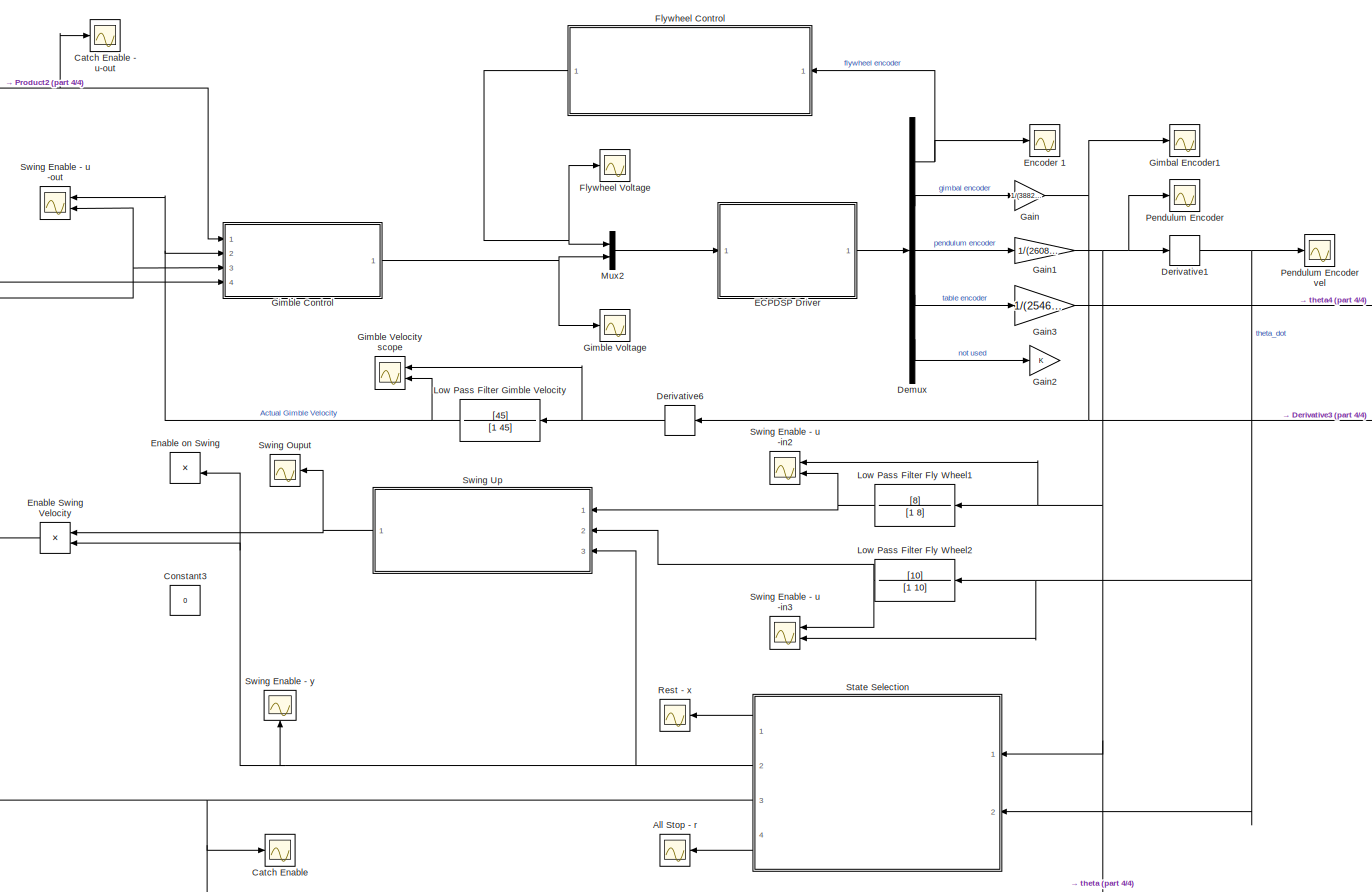
[diagram: root canvas - part 1/4, central region]
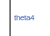
[diagram: root canvas - part 2/4, middle right region]
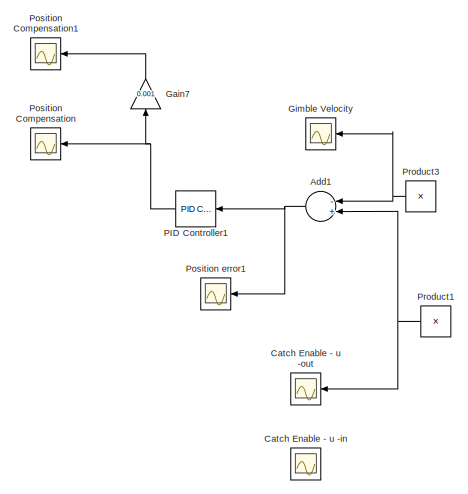
[diagram: root canvas - part 3/4, bottom left region]
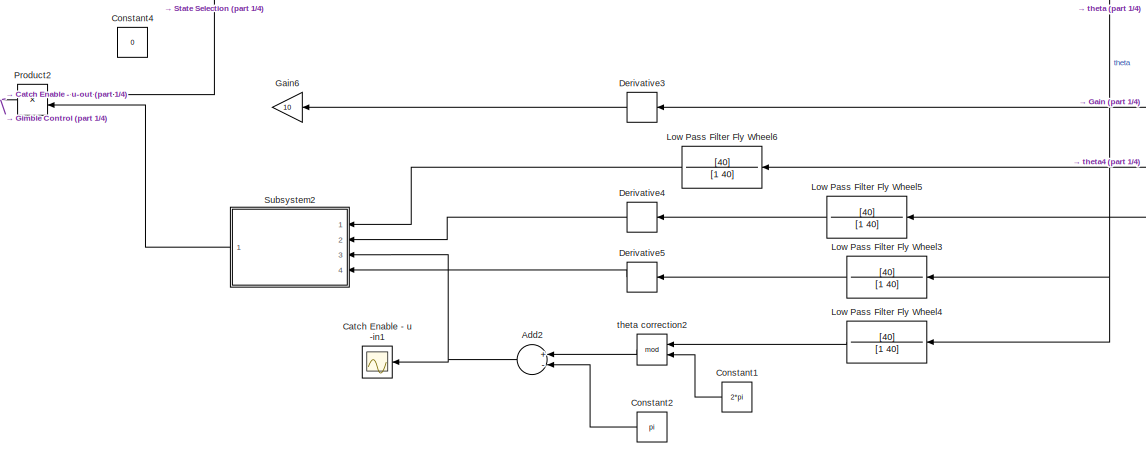
[diagram: root canvas - part 4/4, bottom center region]
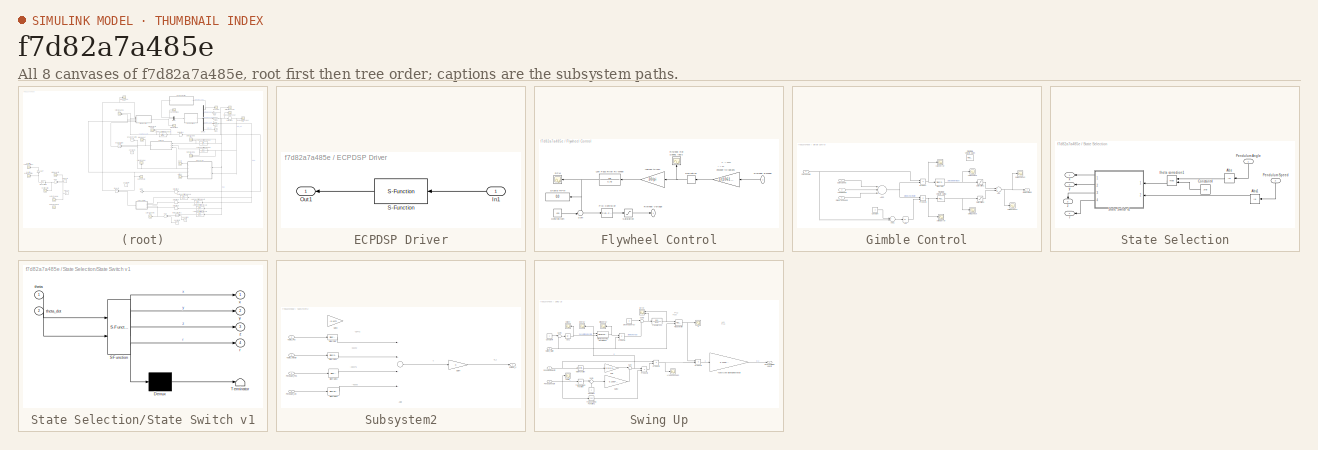
[diagram: thumbnail index - all 8 canvases of the model, root first then tree order]
MODEL slx_f7d82a7a485e
KIND model
BLOCK [Sum] Add1
  Commented = on
  InputSameDT = off
  Inputs = -+
  OutDataTypeStr = Inherit: Inherit via internal rule
  Ports = [2, 1]
  SaturateOnIntegerOverflow = off
BLOCK [Sum] Add2
  InputSameDT = off
  Inputs = +-
  OutDataTypeStr = Inherit: Inherit via internal rule
  Ports = [2, 1]
  SaturateOnIntegerOverflow = off
BLOCK [Scope] All Stop - r
  Floating = off
  NumInputPorts = 1
  Ports = [1]
  SaveName = ScopeData33
  ShowLegends = off
  YMax = 10
  YMin = -10
BLOCK [Scope] Catch Enable
  Floating = off
  NumInputPorts = 1
  Ports = [1]
  SaveName = ScopeData12
  ShowLegends = off
  YMax = 10
  YMin = -10
BLOCK [Scope] Catch Enable - u -in
  Commented = on
  Floating = off
  NumInputPorts = 1
  Ports = [1]
  SaveName = ScopeData2
  ShowLegends = off
  YMax = 10
  YMin = -10
BLOCK [Scope] Catch Enable - u -in1
  Floating = off
  NumInputPorts = 1
  Ports = [1]
  SaveName = ScopeData26
  ShowLegends = off
  YMax = 10
  YMin = -10
BLOCK [Scope] Catch Enable - u -out
  Commented = on
  Floating = off
  NumInputPorts = 1
  Ports = [1]
  SaveName = ScopeData8
  ShowLegends = off
  YMax = 10
  YMin = -10
BLOCK [Scope] Catch Enable - u-out
  Floating = off
  NumInputPorts = 1
  Ports = [1]
  SaveName = ScopeData20
  ShowLegends = off
  YMax = 10
  YMin = -10
BLOCK [Constant] Constant1
  Value = 2*pi
BLOCK [Constant] Constant2
  Value = pi
BLOCK [Constant] Constant3
  Value = 0
BLOCK [Constant] Constant4
  Value = 0
BLOCK [Demux] Demux
  Outputs = 5
  Ports = [1, 5]
BLOCK [Derivative] Derivative1
BLOCK [Derivative] Derivative3
  Commented = on
BLOCK [Derivative] Derivative4
BLOCK [Derivative] Derivative5
BLOCK [Derivative] Derivative6
BLOCK [SubSystem] ECPDSP Driver
  FunctionWithSeparateData = off
  MaskHideContents = off
  MinAlgLoopOccurrences = off
  Opaque = off
  Ports = [1, 1]
  PropExecContextOutsideSubsystem = off
  RTWSystemCode = Auto
  RequestExecContextInheritance = off
BLOCK [Inport] ECPDSP Driver/In1
  IconDisplay = Port number
BLOCK [Outport] ECPDSP Driver/Out1
  IconDisplay = Port number
BLOCK [S-Function] ECPDSP Driver/S-Function
  EnableBusSupport = off
  FunctionName = ECPDSPDriver
  Parameters = BaseAddr,STime,TimeOutPer,HWAccess
  Ports = [1, 1]
BLOCK [Product] Enable Swing Velocity
  InputSameDT = off
  OutDataTypeStr = Inherit: Inherit via internal rule
  Ports = [2, 1]
  RndMeth = Floor
  SaturateOnIntegerOverflow = off
BLOCK [Product] Enable on Swing
  Commented = on
  InputSameDT = off
  OutDataTypeStr = Inherit: Inherit via internal rule
  Ports = [2, 1]
  RndMeth = Floor
  SaturateOnIntegerOverflow = off
BLOCK [Scope] Encoder 1
  DataFormat = StructureWithTime
  Floating = off
  LimitDataPoints = off
  NumInputPorts = 1
  Ports = [1]
  SampleTime = 0
  SaveName = ScopeData3
  ShowLegends = off
  YMax = 8.5e+06
  YMin = 1.5e+06
BLOCK [SubSystem] Flywheel Control
  FunctionWithSeparateData = off
  MaskHideContents = off
  MinAlgLoopOccurrences = off
  Opaque = off
  Ports = [1, 1]
  PropExecContextOutsideSubsystem = off
  RTWSystemCode = Auto
  RequestExecContextInheritance = off
BLOCK [Derivative] Flywheel Control/Derivative
BLOCK [Constant] Flywheel Control/Desired rpm
  Value = 400
BLOCK [Display] Flywheel Control/Display RPM
  Decimation = 1
  Lockdown = off
  Ports = [1]
BLOCK [Inport] Flywheel Control/Flywheel Encoder
  IconDisplay = Port number
BLOCK [Scope] Flywheel Control/Flywheel Rot Speed, rad//s
  DataFormat = StructureWithTime
  Floating = off
  NumInputPorts = 1
  Ports = [1]
  SampleTime = 0
  SaveName = ScopeData4
  ShowLegends = off
BLOCK [Outport] Flywheel Control/Flywheel Voltage
  IconDisplay = Port number
BLOCK [TransferFcn] Flywheel Control/Low Pass Filter Fly Wheel
  Denominator = [1 5]
  Numerator = [5]
BLOCK [Reference] Flywheel Control/PID Controller  REF=simulink/Continuous/PID Controller
  AntiWindupMode = none
  Controller = PID
  D = 0
  DOutDataTypeStr = Inherit: Inherit via internal rule
  DOutMax = []
  DOutMin = []
  DParamDataTypeStr = Inherit: Inherit via internal rule
  DParamMax = []
  DParamMin = []
  ExternalReset = none
  FilterContinuousStateAttributes = ''
  FilterMethod = Forward Euler
  FilterOutDataTypeStr = Inherit: Inherit via internal rule
  FilterOutMax = []
  FilterOutMin = []
  FilterRTWStateStorageClass = Auto
  FilterStateMustResolveToSignalObject = off
  Form = Parallel
  I = 20
  IOutDataTypeStr = Inherit: Inherit via internal rule
  IOutMax = []
  IOutMin = []
  IParamDataTypeStr = Inherit: Inherit via internal rule
  IParamMax = []
  IParamMin = []
  IgnoreLimit = off
  InitialConditionForFilter = 0
  InitialConditionForIntegrator = 0
  InitialConditionSource = internal
  IntegratorContinuousStateAttributes = ''
  IntegratorMethod = Forward Euler
  IntegratorOutDataTypeStr = Inherit: Inherit via internal rule
  IntegratorOutMax = []
  IntegratorOutMin = []
  IntegratorRTWStateStorageClass = Auto
  IntegratorStateMustResolveToSignalObject = off
  Kb = 1
  KbOutDataTypeStr = Inherit: Inherit via internal rule
  KbOutMax = []
  KbOutMin = []
  KbParamDataTypeStr = Inherit: Inherit via internal rule
  KbParamMax = []
  KbParamMin = []
  Kt = 1
  KtOutDataTypeStr = Inherit: Inherit via internal rule
  KtOutMax = []
  KtOutMin = []
  KtParamDataTypeStr = Inherit: Inherit via internal rule
  KtParamMax = []
  KtParamMin = []
  LimitOutput = off
  LinearizeAsGain = on
  LockScale = off
  LowerSaturationLimit = -inf
  N = 100
  NOutDataTypeStr = Inherit: Inherit via internal rule
  NOutMax = []
  NOutMin = []
  NParamDataTypeStr = Inherit: Inherit via internal rule
  NParamMax = []
  NParamMin = []
  P = 4600
  POutDataTypeStr = Inherit: Inherit via internal rule
  POutMax = []
  POutMin = []
  PParamDataTypeStr = Inherit: Inherit via internal rule
  PParamMax = []
  PParamMin = []
  Ports = [1, 1]
  RndMeth = Floor
  SampleTime = 1
  SaturateOnIntegerOverflow = off
  SaturationOutDataTypeStr = Inherit: Same as input
  SaturationOutMax = []
  SaturationOutMin = []
  SourceBlock = simulink/Continuous/PID Controller
  SourceType = PID 1dof
  SumAccumDataTypeStr = Inherit: Inherit via internal rule
  SumDAccumDataTypeStr = Inherit: Inherit via internal rule
  SumDOutDataTypeStr = Inherit: Inherit via internal rule
  SumDOutMax = []
  SumDOutMin = []
  SumI1AccumDataTypeStr = Inherit: Inherit via internal rule
  SumI1OutDataTypeStr = Inherit: Inherit via internal rule
  SumI1OutMax = []
  SumI1OutMin = []
  SumI2AccumDataTypeStr = Inherit: Inherit via internal rule
  SumI2OutDataTypeStr = Inherit: Inherit via internal rule
  SumI2OutMax = []
  SumI2OutMin = []
  SumI3AccumDataTypeStr = Inherit: Inherit via internal rule
  SumI3OutDataTypeStr = Inherit: Inherit via internal rule
  SumI3OutMax = []
  SumI3OutMin = []
  SumOutDataTypeStr = Inherit: Inherit via internal rule
  SumOutMax = []
  SumOutMin = []
  TimeDomain = Continuous-time
  TrackingMode = off
  UpperSaturationLimit = inf
  ZeroCross = on
BLOCK [Scope] Flywheel Control/RPM
  DataFormat = StructureWithTime
  Floating = off
  LimitDataPoints = off
  NumInputPorts = 1
  Ports = [1]
  SampleTime = 0
  ShowLegends = off
  YMax = 403.9
  YMin = 401.6
BLOCK [Saturate] Flywheel Control/Saturation
  InputPortMap = u0
  LowerLimit = -32000
  Ports = [1, 1]
  UpperLimit = 32000
BLOCK [Sum] Flywheel Control/Sum
  IconShape = round
  InputSameDT = off
  Inputs = -+|
  OutDataTypeStr = Inherit: Inherit via internal rule
  Ports = [2, 1]
  SaturateOnIntegerOverflow = off
BLOCK [Gain] Flywheel Control/encoder to radians
  Gain = 1/(1061*32)
  OutDataTypeStr = Inherit: Inherit via internal rule
  ParamDataTypeStr = Inherit: Inherit via internal rule
  SaturateOnIntegerOverflow = off
BLOCK [Gain] Flywheel Control/rad//sec to rpm
  Gain = 30/pi
  OutDataTypeStr = Inherit: Inherit via internal rule
  ParamDataTypeStr = Inherit: Inherit via internal rule
  SaturateOnIntegerOverflow = off
BLOCK [Scope] Flywheel Voltage
  DataFormat = StructureWithTime
  Floating = off
  LimitDataPoints = off
  NumInputPorts = 1
  Ports = [1]
  SampleTime = 0
  SaveName = ScopeData6
  ShowLegends = off
  YMax = 33600
  YMin = 30400
BLOCK [Gain] Gain
  Gain = 1/(3882*32)
  OutDataTypeStr = Inherit: Inherit via internal rule
  ParamDataTypeStr = Inherit: Inherit via internal rule
  SaturateOnIntegerOverflow = off
BLOCK [Gain] Gain1
  Gain = 1/(2608*32)
  OutDataTypeStr = Inherit: Inherit via internal rule
  ParamDataTypeStr = Inherit: Inherit via internal rule
  SaturateOnIntegerOverflow = off
BLOCK [Gain] Gain2
  OutDataTypeStr = Inherit: Inherit via internal rule
  ParamDataTypeStr = Inherit: Inherit via internal rule
  SaturateOnIntegerOverflow = off
BLOCK [Gain] Gain3
  Gain = 1/(2546*32)
  OutDataTypeStr = Inherit: Inherit via internal rule
  ParamDataTypeStr = Inherit: Inherit via internal rule
  SaturateOnIntegerOverflow = off
BLOCK [Gain] Gain6
  Commented = on
  Gain = 10
  OutDataTypeStr = Inherit: Inherit via internal rule
  ParamDataTypeStr = Inherit: Inherit via internal rule
  SaturateOnIntegerOverflow = off
BLOCK [Gain] Gain7
  Commented = on
  Gain = 0.001
  OutDataTypeStr = Inherit: Inherit via internal rule
  ParamDataTypeStr = Inherit: Inherit via internal rule
  SaturateOnIntegerOverflow = off
BLOCK [Scope] Gimbal Encoder1
  DataFormat = StructureWithTime
  Floating = off
  NumInputPorts = 1
  Ports = [1]
  SampleTime = 0
  SaveName = ScopeData9
  ShowLegends = off
  YMax = 3.25
  YMin = -0.25
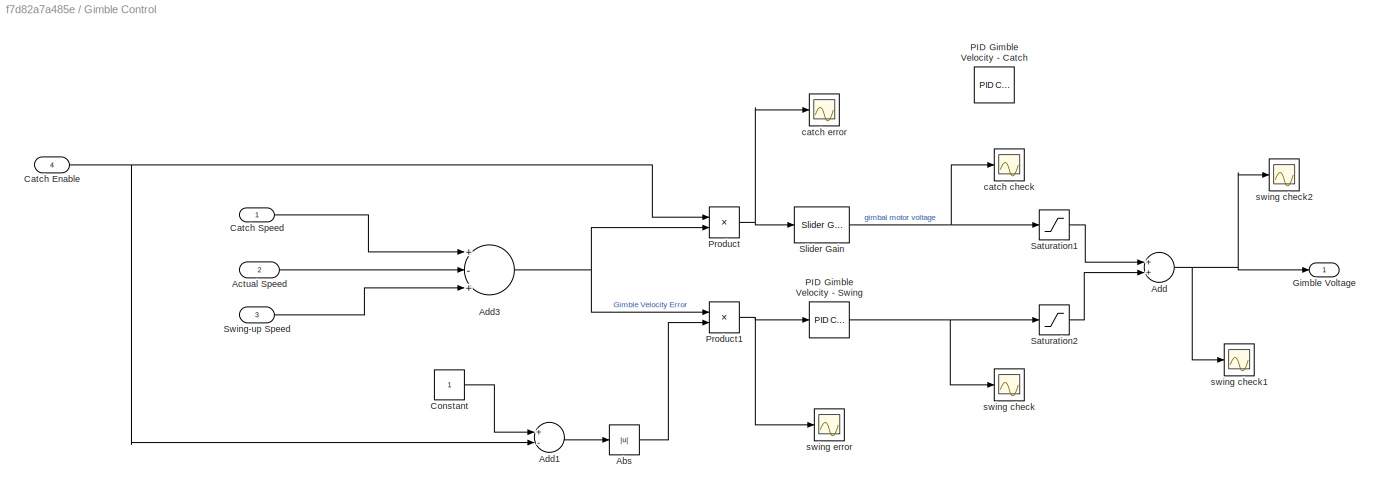
BLOCK [SubSystem] Gimble Control
  FunctionWithSeparateData = off
  MaskHideContents = off
  MinAlgLoopOccurrences = off
  Opaque = off
  Ports = [4, 1]
  PropExecContextOutsideSubsystem = off
  RTWSystemCode = Auto
  RequestExecContextInheritance = off
BLOCK [Abs] Gimble Control/Abs
  SaturateOnIntegerOverflow = off
BLOCK [Inport] Gimble Control/Actual Speed
  IconDisplay = Port number
  Port = 2
BLOCK [Sum] Gimble Control/Add
  InputSameDT = off
  OutDataTypeStr = Inherit: Inherit via internal rule
  Ports = [2, 1]
  SaturateOnIntegerOverflow = off
BLOCK [Sum] Gimble Control/Add1
  InputSameDT = off
  Inputs = +-
  OutDataTypeStr = Inherit: Inherit via internal rule
  Ports = [2, 1]
  SaturateOnIntegerOverflow = off
BLOCK [Sum] Gimble Control/Add3
  InputSameDT = off
  Inputs = +-+
  OutDataTypeStr = Inherit: Inherit via internal rule
  Ports = [3, 1]
  SaturateOnIntegerOverflow = off
BLOCK [Inport] Gimble Control/Catch Enable
  IconDisplay = Port number
  Port = 4
BLOCK [Inport] Gimble Control/Catch Speed
  IconDisplay = Port number
BLOCK [Constant] Gimble Control/Constant
BLOCK [Outport] Gimble Control/Gimble Voltage
  IconDisplay = Port number
BLOCK [Reference] Gimble Control/PID Gimble Velocity - Catch  REF=simulink/Continuous/PID Controller
  AntiWindupMode = none
  Commented = on
  Controller = PI
  D = 0
  DOutDataTypeStr = Inherit: Inherit via internal rule
  DOutMax = []
  DOutMin = []
  DParamDataTypeStr = Inherit: Inherit via internal rule
  DParamMax = []
  DParamMin = []
  ExternalReset = none
  FilterContinuousStateAttributes = ''
  FilterMethod = Forward Euler
  FilterOutDataTypeStr = Inherit: Inherit via internal rule
  FilterOutMax = []
  FilterOutMin = []
  FilterRTWStateStorageClass = Auto
  FilterStateMustResolveToSignalObject = off
  Form = Parallel
  I = 0
  IOutDataTypeStr = Inherit: Inherit via internal rule
  IOutMax = []
  IOutMin = []
  IParamDataTypeStr = Inherit: Inherit via internal rule
  IParamMax = []
  IParamMin = []
  IgnoreLimit = off
  InitialConditionForFilter = 0
  InitialConditionForIntegrator = 0
  InitialConditionSource = internal
  IntegratorContinuousStateAttributes = ''
  IntegratorMethod = Forward Euler
  IntegratorOutDataTypeStr = Inherit: Inherit via internal rule
  IntegratorOutMax = []
  IntegratorOutMin = []
  IntegratorRTWStateStorageClass = Auto
  IntegratorStateMustResolveToSignalObject = off
  Kb = 1
  KbOutDataTypeStr = Inherit: Inherit via internal rule
  KbOutMax = []
  KbOutMin = []
  KbParamDataTypeStr = Inherit: Inherit via internal rule
  KbParamMax = []
  KbParamMin = []
  Kt = 1
  KtOutDataTypeStr = Inherit: Inherit via internal rule
  KtOutMax = []
  KtOutMin = []
  KtParamDataTypeStr = Inherit: Inherit via internal rule
  KtParamMax = []
  KtParamMin = []
  LimitOutput = off
  LinearizeAsGain = on
  LockScale = off
  LowerSaturationLimit = -inf
  N = 100
  NOutDataTypeStr = Inherit: Inherit via internal rule
  NOutMax = []
  NOutMin = []
  NParamDataTypeStr = Inherit: Inherit via internal rule
  NParamMax = []
  NParamMin = []
  P = 1000
  POutDataTypeStr = Inherit: Inherit via internal rule
  POutMax = []
  POutMin = []
  PParamDataTypeStr = Inherit: Inherit via internal rule
  PParamMax = []
  PParamMin = []
  Ports = [1, 1]
  RndMeth = Floor
  SampleTime = 1
  SaturateOnIntegerOverflow = off
  SaturationOutDataTypeStr = Inherit: Same as input
  SaturationOutMax = []
  SaturationOutMin = []
  SourceBlock = simulink/Continuous/PID Controller
  SourceType = PID 1dof
  SumAccumDataTypeStr = Inherit: Inherit via internal rule
  SumDAccumDataTypeStr = Inherit: Inherit via internal rule
  SumDOutDataTypeStr = Inherit: Inherit via internal rule
  SumDOutMax = []
  SumDOutMin = []
  SumI1AccumDataTypeStr = Inherit: Inherit via internal rule
  SumI1OutDataTypeStr = Inherit: Inherit via internal rule
  SumI1OutMax = []
  SumI1OutMin = []
  SumI2AccumDataTypeStr = Inherit: Inherit via internal rule
  SumI2OutDataTypeStr = Inherit: Inherit via internal rule
  SumI2OutMax = []
  SumI2OutMin = []
  SumI3AccumDataTypeStr = Inherit: Inherit via internal rule
  SumI3OutDataTypeStr = Inherit: Inherit via internal rule
  SumI3OutMax = []
  SumI3OutMin = []
  SumOutDataTypeStr = Inherit: Inherit via internal rule
  SumOutMax = []
  SumOutMin = []
  TimeDomain = Continuous-time
  TrackingMode = off
  UpperSaturationLimit = inf
  ZeroCross = on
BLOCK [Reference] Gimble Control/PID Gimble Velocity - Swing  REF=simulink/Continuous/PID Controller
  AntiWindupMode = none
  Controller = PID
  D = 0
  DOutDataTypeStr = Inherit: Inherit via internal rule
  DOutMax = []
  DOutMin = []
  DParamDataTypeStr = Inherit: Inherit via internal rule
  DParamMax = []
  DParamMin = []
  ExternalReset = none
  FilterContinuousStateAttributes = ''
  FilterMethod = Forward Euler
  FilterOutDataTypeStr = Inherit: Inherit via internal rule
  FilterOutMax = []
  FilterOutMin = []
  FilterRTWStateStorageClass = Auto
  FilterStateMustResolveToSignalObject = off
  Form = Parallel
  I = 2500
  IOutDataTypeStr = Inherit: Inherit via internal rule
  IOutMax = []
  IOutMin = []
  IParamDataTypeStr = Inherit: Inherit via internal rule
  IParamMax = []
  IParamMin = []
  IgnoreLimit = off
  InitialConditionForFilter = 0
  InitialConditionForIntegrator = 0
  InitialConditionSource = internal
  IntegratorContinuousStateAttributes = ''
  IntegratorMethod = Forward Euler
  IntegratorOutDataTypeStr = Inherit: Inherit via internal rule
  IntegratorOutMax = []
  IntegratorOutMin = []
  IntegratorRTWStateStorageClass = Auto
  IntegratorStateMustResolveToSignalObject = off
  Kb = 1
  KbOutDataTypeStr = Inherit: Inherit via internal rule
  KbOutMax = []
  KbOutMin = []
  KbParamDataTypeStr = Inherit: Inherit via internal rule
  KbParamMax = []
  KbParamMin = []
  Kt = 1
  KtOutDataTypeStr = Inherit: Inherit via internal rule
  KtOutMax = []
  KtOutMin = []
  KtParamDataTypeStr = Inherit: Inherit via internal rule
  KtParamMax = []
  KtParamMin = []
  LimitOutput = off
  LinearizeAsGain = on
  LockScale = off
  LowerSaturationLimit = -inf
  N = 100
  NOutDataTypeStr = Inherit: Inherit via internal rule
  NOutMax = []
  NOutMin = []
  NParamDataTypeStr = Inherit: Inherit via internal rule
  NParamMax = []
  NParamMin = []
  P = 12000
  POutDataTypeStr = Inherit: Inherit via internal rule
  POutMax = []
  POutMin = []
  PParamDataTypeStr = Inherit: Inherit via internal rule
  PParamMax = []
  PParamMin = []
  Ports = [1, 1]
  RndMeth = Floor
  SampleTime = 1
  SaturateOnIntegerOverflow = off
  SaturationOutDataTypeStr = Inherit: Same as input
  SaturationOutMax = []
  SaturationOutMin = []
  SourceBlock = simulink/Continuous/PID Controller
  SourceType = PID 1dof
  SumAccumDataTypeStr = Inherit: Inherit via internal rule
  SumDAccumDataTypeStr = Inherit: Inherit via internal rule
  SumDOutDataTypeStr = Inherit: Inherit via internal rule
  SumDOutMax = []
  SumDOutMin = []
  SumI1AccumDataTypeStr = Inherit: Inherit via internal rule
  SumI1OutDataTypeStr = Inherit: Inherit via internal rule
  SumI1OutMax = []
  SumI1OutMin = []
  SumI2AccumDataTypeStr = Inherit: Inherit via internal rule
  SumI2OutDataTypeStr = Inherit: Inherit via internal rule
  SumI2OutMax = []
  SumI2OutMin = []
  SumI3AccumDataTypeStr = Inherit: Inherit via internal rule
  SumI3OutDataTypeStr = Inherit: Inherit via internal rule
  SumI3OutMax = []
  SumI3OutMin = []
  SumOutDataTypeStr = Inherit: Inherit via internal rule
  SumOutMax = []
  SumOutMin = []
  TimeDomain = Continuous-time
  TrackingMode = off
  UpperSaturationLimit = inf
  ZeroCross = on
BLOCK [Product] Gimble Control/Product
  InputSameDT = off
  OutDataTypeStr = Inherit: Inherit via internal rule
  Ports = [2, 1]
  RndMeth = Floor
  SaturateOnIntegerOverflow = off
BLOCK [Product] Gimble Control/Product1
  InputSameDT = off
  OutDataTypeStr = Inherit: Inherit via internal rule
  Ports = [2, 1]
  RndMeth = Floor
  SaturateOnIntegerOverflow = off
BLOCK [Saturate] Gimble Control/Saturation1
  InputPortMap = u0
  LowerLimit = -40000
  Ports = [1, 1]
  UpperLimit = 40000
BLOCK [Saturate] Gimble Control/Saturation2
  InputPortMap = u0
  LowerLimit = -9500
  Ports = [1, 1]
  UpperLimit = 9500
BLOCK [Reference] Gimble Control/Slider Gain  REF=simulink/Math
Operations/Slider
Gain
  Ports = [1, 1]
  SourceBlock = simulink/Math\nOperations/Slider\nGain
  SourceType = Slider Gain
  gain = 1626.958
  high = 2000
  low = 0
BLOCK [Inport] Gimble Control/Swing-up Speed
  IconDisplay = Port number
  Port = 3
BLOCK [Scope] Gimble Control/catch check
  DataFormat = StructureWithTime
  Floating = off
  NumInputPorts = 1
  Ports = [1]
  SampleTime = 0
  SaveName = ScopeData21
  ShowLegends = off
BLOCK [Scope] Gimble Control/catch error
  DataFormat = StructureWithTime
  Floating = off
  NumInputPorts = 1
  Ports = [1]
  SampleTime = 0
  SaveName = ScopeData24
  ShowLegends = off
BLOCK [Scope] Gimble Control/swing check
  DataFormat = StructureWithTime
  Floating = off
  NumInputPorts = 1
  Ports = [1]
  SampleTime = 0
  SaveName = ScopeData22
  ShowLegends = off
BLOCK [Scope] Gimble Control/swing check1
  DataFormat = StructureWithTime
  Floating = off
  NumInputPorts = 1
  Ports = [1]
  SampleTime = 0
  SaveName = ScopeData27
  ShowLegends = off
BLOCK [Scope] Gimble Control/swing check2
  DataFormat = StructureWithTime
  Floating = off
  NumInputPorts = 1
  Ports = [1]
  SampleTime = 0
  SaveName = ScopeData37
  ShowLegends = off
BLOCK [Scope] Gimble Control/swing error
  DataFormat = StructureWithTime
  Floating = off
  NumInputPorts = 1
  Ports = [1]
  SampleTime = 0
  SaveName = ScopeData25
  ShowLegends = off
BLOCK [Scope] Gimble Velocity
  Commented = on
  Floating = off
  NumInputPorts = 1
  Ports = [1]
  SaveName = ScopeData10
  ShowLegends = off
  YMax = 10
  YMin = -10
BLOCK [Scope] Gimble Velocity scope
  Floating = off
  LimitDataPoints = off
  NumInputPorts = 2
  Ports = [2]
  SaveName = ScopeData32
  ShowLegends = off
  YMax = 10~5
  YMin = -10~-5
BLOCK [Scope] Gimble Voltage
  Floating = off
  NumInputPorts = 1
  Ports = [1]
  SaveName = ScopeData23
  ShowLegends = off
  TimeRange = 4.21022074346109
  YMax = 13910.18606424908
  YMin = -27910.40741056809
BLOCK [TransferFcn] Low Pass Filter Fly Wheel1
  Denominator = [1 8]
  Numerator = [8]
BLOCK [TransferFcn] Low Pass Filter Fly Wheel2
  Denominator = [1 10]
  Numerator = [10]
BLOCK [TransferFcn] Low Pass Filter Fly Wheel3
  Denominator = [1 40]
  Numerator = [40]
BLOCK [TransferFcn] Low Pass Filter Fly Wheel4
  Denominator = [1 40]
  Numerator = [40]
BLOCK [TransferFcn] Low Pass Filter Fly Wheel5
  Denominator = [1 40]
  Numerator = [40]
BLOCK [TransferFcn] Low Pass Filter Fly Wheel6
  Denominator = [1 40]
  Numerator = [40]
BLOCK [TransferFcn] Low Pass Filter Gimble Velocity
  Denominator = [1 45]
  Numerator = [45]
BLOCK [Mux] Mux2
  DisplayOption = bar
  Inputs = 2
  Ports = [2, 1]
BLOCK [Reference] PID Controller1  REF=simulink/Continuous/PID Controller
  AntiWindupMode = none
  Commented = on
  Controller = PID
  D = 0
  DOutDataTypeStr = Inherit: Inherit via internal rule
  DOutMax = []
  DOutMin = []
  DParamDataTypeStr = Inherit: Inherit via internal rule
  DParamMax = []
  DParamMin = []
  ExternalReset = none
  FilterContinuousStateAttributes = ''
  FilterMethod = Forward Euler
  FilterOutDataTypeStr = Inherit: Inherit via internal rule
  FilterOutMax = []
  FilterOutMin = []
  FilterRTWStateStorageClass = Auto
  FilterStateMustResolveToSignalObject = off
  Form = Parallel
  I = 50
  IOutDataTypeStr = Inherit: Inherit via internal rule
  IOutMax = []
  IOutMin = []
  IParamDataTypeStr = Inherit: Inherit via internal rule
  IParamMax = []
  IParamMin = []
  IgnoreLimit = off
  InitialConditionForFilter = 0
  InitialConditionForIntegrator = 0
  InitialConditionSource = internal
  IntegratorContinuousStateAttributes = ''
  IntegratorMethod = Forward Euler
  IntegratorOutDataTypeStr = Inherit: Inherit via internal rule
  IntegratorOutMax = []
  IntegratorOutMin = []
  IntegratorRTWStateStorageClass = Auto
  IntegratorStateMustResolveToSignalObject = off
  Kb = 1
  KbOutDataTypeStr = Inherit: Inherit via internal rule
  KbOutMax = []
  KbOutMin = []
  KbParamDataTypeStr = Inherit: Inherit via internal rule
  KbParamMax = []
  KbParamMin = []
  Kt = 1
  KtOutDataTypeStr = Inherit: Inherit via internal rule
  KtOutMax = []
  KtOutMin = []
  KtParamDataTypeStr = Inherit: Inherit via internal rule
  KtParamMax = []
  KtParamMin = []
  LimitOutput = off
  LinearizeAsGain = on
  LockScale = off
  LowerSaturationLimit = -inf
  N = 100
  NOutDataTypeStr = Inherit: Inherit via internal rule
  NOutMax = []
  NOutMin = []
  NParamDataTypeStr = Inherit: Inherit via internal rule
  NParamMax = []
  NParamMin = []
  P = 200
  POutDataTypeStr = Inherit: Inherit via internal rule
  POutMax = []
  POutMin = []
  PParamDataTypeStr = Inherit: Inherit via internal rule
  PParamMax = []
  PParamMin = []
  Ports = [1, 1]
  RndMeth = Floor
  SampleTime = 1
  SaturateOnIntegerOverflow = off
  SaturationOutDataTypeStr = Inherit: Same as input
  SaturationOutMax = []
  SaturationOutMin = []
  SourceBlock = simulink/Continuous/PID Controller
  SourceType = PID 1dof
  SumAccumDataTypeStr = Inherit: Inherit via internal rule
  SumDAccumDataTypeStr = Inherit: Inherit via internal rule
  SumDOutDataTypeStr = Inherit: Inherit via internal rule
  SumDOutMax = []
  SumDOutMin = []
  SumI1AccumDataTypeStr = Inherit: Inherit via internal rule
  SumI1OutDataTypeStr = Inherit: Inherit via internal rule
  SumI1OutMax = []
  SumI1OutMin = []
  SumI2AccumDataTypeStr = Inherit: Inherit via internal rule
  SumI2OutDataTypeStr = Inherit: Inherit via internal rule
  SumI2OutMax = []
  SumI2OutMin = []
  SumI3AccumDataTypeStr = Inherit: Inherit via internal rule
  SumI3OutDataTypeStr = Inherit: Inherit via internal rule
  SumI3OutMax = []
  SumI3OutMin = []
  SumOutDataTypeStr = Inherit: Inherit via internal rule
  SumOutMax = []
  SumOutMin = []
  TimeDomain = Continuous-time
  TrackingMode = off
  UpperSaturationLimit = inf
  ZeroCross = on
BLOCK [Scope] Pendulum Encoder
  DataFormat = StructureWithTime
  Floating = off
  NumInputPorts = 1
  Ports = [1]
  SampleTime = 0
  SaveName = ScopeData5
  ShowLegends = off
  YMax = -3.1
  YMin = -3.175
BLOCK [Scope] Pendulum Encoder vel
  DataFormat = StructureWithTime
  Floating = off
  NumInputPorts = 1
  Ports = [1]
  SampleTime = 0
  SaveName = ScopeData19
  ShowLegends = off
  YMax = 3.25
  YMin = -0.25
BLOCK [Scope] Position Compensation
  Commented = on
  Floating = off
  NumInputPorts = 1
  Ports = [1]
  SaveName = ScopeData11
  ShowLegends = off
  YMax = 10
  YMin = -10
BLOCK [Scope] Position Compensation1
  Commented = on
  Floating = off
  NumInputPorts = 1
  Ports = [1]
  SaveName = ScopeData13
  ShowLegends = off
  YMax = 10
  YMin = -10
BLOCK [Scope] Position error1
  Commented = on
  Floating = off
  NumInputPorts = 1
  Ports = [1]
  SaveName = ScopeData14
  ShowLegends = off
  YMax = 10
  YMin = -10
BLOCK [Product] Product1
  Commented = on
  InputSameDT = off
  OutDataTypeStr = Inherit: Inherit via internal rule
  Ports = [2, 1]
  RndMeth = Floor
  SaturateOnIntegerOverflow = off
BLOCK [Product] Product2
  InputSameDT = off
  OutDataTypeStr = Inherit: Inherit via internal rule
  Ports = [2, 1]
  RndMeth = Floor
  SaturateOnIntegerOverflow = off
BLOCK [Product] Product3
  Commented = on
  InputSameDT = off
  OutDataTypeStr = Inherit: Inherit via internal rule
  Ports = [2, 1]
  RndMeth = Floor
  SaturateOnIntegerOverflow = off
BLOCK [Scope] Rest - x
  Floating = off
  NumInputPorts = 1
  Ports = [1]
  SaveName = ScopeData15
  ShowLegends = off
  YMax = 10
  YMin = -10
BLOCK [SubSystem] State Selection
  FunctionWithSeparateData = off
  MaskHideContents = off
  MinAlgLoopOccurrences = off
  Opaque = off
  Ports = [2, 4]
  PropExecContextOutsideSubsystem = off
  RTWSystemCode = Auto
  RequestExecContextInheritance = off
BLOCK [Abs] State Selection/Abs
  SaturateOnIntegerOverflow = off
BLOCK [Abs] State Selection/Abs1
  SaturateOnIntegerOverflow = off
BLOCK [Constant] State Selection/Constant4
  Value = 2*pi
BLOCK [Inport] State Selection/Pendulum Angle
  IconDisplay = Port number
BLOCK [Inport] State Selection/Pendulum Speed
  IconDisplay = Port number
  Port = 2
BLOCK [SubSystem] State Selection/State Switch v1
  ErrorFcn = Stateflow.Translate.translate
  FunctionWithSeparateData = off
  MaskHideContents = off
  MinAlgLoopOccurrences = off
  Opaque = off
  PermitHierarchicalResolution = ExplicitOnly
  Ports = [2, 4]
  PropExecContextOutsideSubsystem = off
  RTWSystemCode = Auto
  RequestExecContextInheritance = off
  SFBlockType = Chart
  TreatAsAtomicUnit = on
BLOCK [Demux] State Selection/State Switch v1/ Demux 
  Outputs = 1
  Ports = [1, 1]
BLOCK [S-Function] State Selection/State Switch v1/ SFunction 
  EnableBusSupport = on
  FunctionName = sf_sfun
  PortCounts = [2 5]
  Ports = [2, 5]
  Tag = Stateflow S-Function plant_block_swing_catch 3
BLOCK [Terminator] State Selection/State Switch v1/ Terminator 
BLOCK [Outport] State Selection/State Switch v1/r
  IconDisplay = Port number
  Port = 4
BLOCK [Inport] State Selection/State Switch v1/theta
  IconDisplay = Port number
BLOCK [Inport] State Selection/State Switch v1/theta_dot
  IconDisplay = Port number
  Port = 2
BLOCK [Outport] State Selection/State Switch v1/x
  IconDisplay = Port number
BLOCK [Outport] State Selection/State Switch v1/y
  IconDisplay = Port number
  Port = 2
BLOCK [Outport] State Selection/State Switch v1/z
  IconDisplay = Port number
  Port = 3
BLOCK [Outport] State Selection/r
  IconDisplay = Port number
  Port = 4
BLOCK [Math] State Selection/theta correction1
  Operator = mod
  Ports = [2, 1]
BLOCK [Outport] State Selection/x
  IconDisplay = Port number
BLOCK [Outport] State Selection/y
  IconDisplay = Port number
  Port = 2
BLOCK [Outport] State Selection/z
  IconDisplay = Port number
  Port = 3
BLOCK [SubSystem] Subsystem2
  FunctionWithSeparateData = off
  MaskHideContents = off
  MinAlgLoopOccurrences = off
  Opaque = off
  Ports = [4, 1]
  PropExecContextOutsideSubsystem = off
  RTWSystemCode = Auto
  RequestExecContextInheritance = off
BLOCK [Sum] Subsystem2/Add
  InputSameDT = off
  Inputs = ++++
  OutDataTypeStr = Inherit: Inherit via internal rule
  Ports = [4, 1]
  SaturateOnIntegerOverflow = off
BLOCK [Gain] Subsystem2/Gain2
  Gain = -0.4472
  OutDataTypeStr = Inherit: Inherit via internal rule
  ParamDataTypeStr = Inherit: Inherit via internal rule
  SaturateOnIntegerOverflow = off
BLOCK [Gain] Subsystem2/Gain4
  OutDataTypeStr = Inherit: Inherit via internal rule
  ParamDataTypeStr = Inherit: Inherit via internal rule
  SaturateOnIntegerOverflow = off
BLOCK [Inport] Subsystem2/Pendulum_Pos
  IconDisplay = Port number
  Port = 3
BLOCK [Inport] Subsystem2/Pendulum_Vel
  IconDisplay = Port number
  Port = 4
BLOCK [Reference] Subsystem2/Slider Gain  REF=simulink/Math
Operations/Slider
Gain
  Ports = [1, 1]
  SourceBlock = simulink/Math\nOperations/Slider\nGain
  SourceType = Slider Gain
  gain = -1.1972
  high = 5
  low = -20
BLOCK [Reference] Subsystem2/Slider Gain1  REF=simulink/Math
Operations/Slider
Gain
  Ports = [1, 1]
  SourceBlock = simulink/Math\nOperations/Slider\nGain
  SourceType = Slider Gain
  gain = -8.3202
  high = 1
  low = -30
BLOCK [Reference] Subsystem2/Slider Gain2  REF=simulink/Math
Operations/Slider
Gain
  Ports = [1, 1]
  SourceBlock = simulink/Math\nOperations/Slider\nGain
  SourceType = Slider Gain
  gain = -45.547
  high = 1
  low = -80
BLOCK [Reference] Subsystem2/Slider Gain3  REF=simulink/Math
Operations/Slider
Gain
  Ports = [1, 1]
  SourceBlock = simulink/Math\nOperations/Slider\nGain
  SourceType = Slider Gain
  gain = -8.2266
  high = 1
  low = -20
BLOCK [Inport] Subsystem2/Table_Pos
  IconDisplay = Port number
BLOCK [Inport] Subsystem2/Table_Velocity
  IconDisplay = Port number
  Port = 2
BLOCK [Outport] Subsystem2/omega_2
  IconDisplay = Port number
BLOCK [Scope] Swing Enable - u -in2
  Floating = off
  LimitDataPoints = off
  NumInputPorts = 2
  Ports = [2]
  SaveName = ScopeData30
  ShowLegends = off
  YMax = 10~5
  YMin = -10~-5
BLOCK [Scope] Swing Enable - u -in3
  Floating = off
  LimitDataPoints = off
  NumInputPorts = 2
  Ports = [2]
  SaveName = ScopeData31
  ShowLegends = off
  YMax = 10~5
  YMin = -10~-5
BLOCK [Scope] Swing Enable - u -out
  Floating = off
  NumInputPorts = 2
  Ports = [2]
  SaveName = ScopeData18
  ShowLegends = off
  YMax = 10~5
  YMin = -10~-5
BLOCK [Scope] Swing Enable - y
  Floating = off
  NumInputPorts = 1
  Ports = [1]
  SaveName = ScopeData16
  ShowLegends = off
  YMax = 10
  YMin = -10
BLOCK [Scope] Swing Ouput
  Floating = off
  NumInputPorts = 1
  Ports = [1]
  SaveName = ScopeData17
  ShowLegends = off
  YMax = 10
  YMin = -10
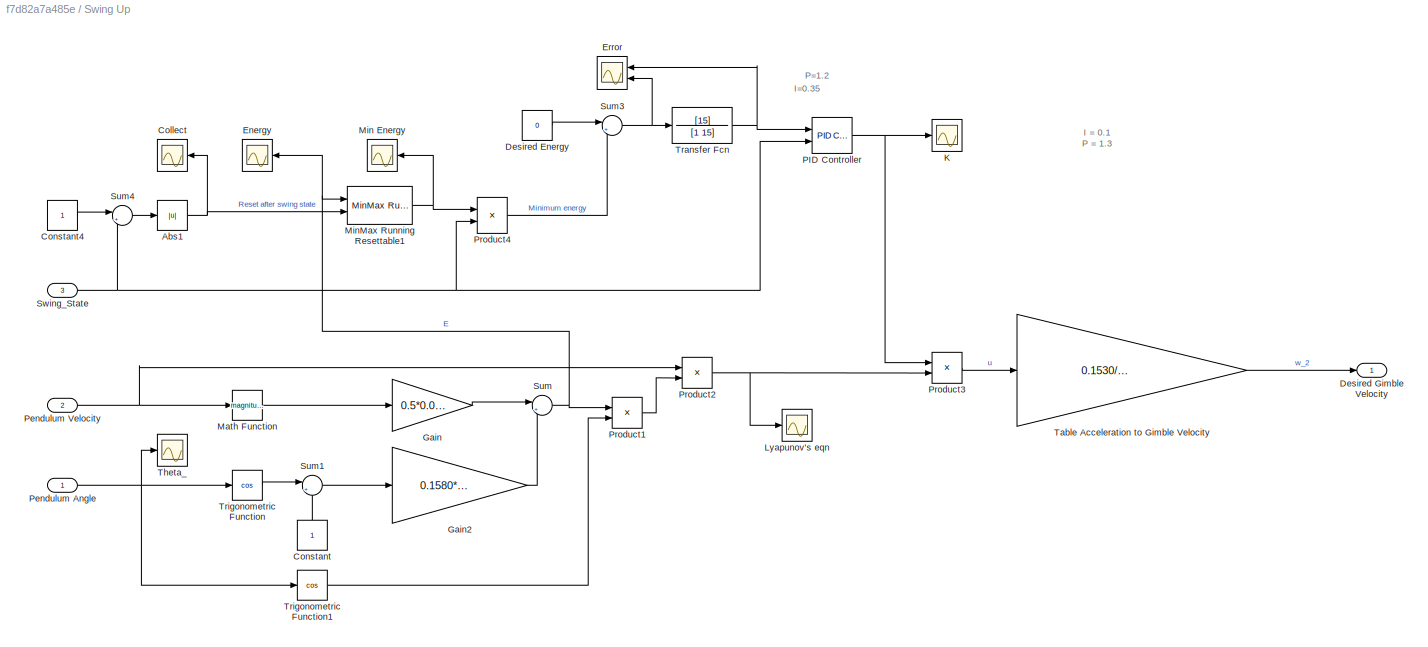
BLOCK [SubSystem] Swing Up
  FunctionWithSeparateData = off
  MaskHideContents = off
  MinAlgLoopOccurrences = off
  Opaque = off
  Ports = [3, 1]
  PropExecContextOutsideSubsystem = off
  RTWSystemCode = Auto
  RequestExecContextInheritance = off
BLOCK [Abs] Swing Up/Abs1
  SaturateOnIntegerOverflow = off
BLOCK [Scope] Swing Up/Collect
  DataFormat = StructureWithTime
  Floating = off
  NumInputPorts = 1
  Ports = [1]
  SaveName = ScopeData35
  ShowLegends = off
  YMax = 0.8575
  YMin = 0.82
BLOCK [Constant] Swing Up/Constant
BLOCK [Constant] Swing Up/Constant4
BLOCK [Constant] Swing Up/Desired Energy
  Value = 0
BLOCK [Outport] Swing Up/Desired Gimble Velocity
  IconDisplay = Port number
BLOCK [Scope] Swing Up/Energy
  DataFormat = StructureWithTime
  Floating = off
  NumInputPorts = 1
  Ports = [1]
  SaveName = ScopeData7
  ShowLegends = off
  YMax = 0.8575
  YMin = 0.82
BLOCK [Scope] Swing Up/Error
  DataFormat = StructureWithTime
  Floating = off
  NumInputPorts = 2
  Ports = [2]
  SaveName = ScopeData36
  ShowLegends = off
  YMax = 0.8575~5
  YMin = 0.82~-5
BLOCK [Gain] Swing Up/Gain
  Gain = 0.5*0.0131
  OutDataTypeStr = Inherit: Inherit via internal rule
  ParamDataTypeStr = Inherit: Inherit via internal rule
  SaturateOnIntegerOverflow = off
BLOCK [Gain] Swing Up/Gain2
  Gain = 0.1580*9.81*0.2698
  OutDataTypeStr = Inherit: Inherit via internal rule
  ParamDataTypeStr = Inherit: Inherit via internal rule
  SaturateOnIntegerOverflow = off
BLOCK [Scope] Swing Up/K
  DataFormat = StructureWithTime
  Floating = off
  LimitDataPoints = off
  NumInputPorts = 1
  Ports = [1]
  SaveName = ScopeData29
  ShowLegends = off
  YMax = -0.00209088
  YMin = -0.00209088
BLOCK [Scope] Swing Up/Lyapunov's eqn
  DataFormat = StructureWithTime
  Floating = off
  LimitDataPoints = off
  NumInputPorts = 1
  Ports = [1]
  SaveName = ScopeData1
  ShowLegends = off
  YMax = 10
  YMin = -10
BLOCK [Math] Swing Up/Math Function
  Operator = magnitude^2
  Ports = [1, 1]
BLOCK [Scope] Swing Up/Min Energy
  DataFormat = StructureWithTime
  Floating = off
  NumInputPorts = 1
  Ports = [1]
  SaveName = ScopeData34
  ShowLegends = off
  YMax = 0.8575
  YMin = 0.82
BLOCK [Reference] Swing Up/MinMax Running Resettable1  REF=simulink/Math
Operations/MinMax
Running
Resettable
  Function = min
  Ports = [2, 1]
  SourceBlock = simulink/Math\nOperations/MinMax\nRunning\nResettable
  SourceType = MinMax Running Resettable
  vinit = 0.85
BLOCK [Reference] Swing Up/PID Controller  REF=simulink/Continuous/PID Controller
  AntiWindupMode = none
  Controller = PID
  D = 0
  DOutDataTypeStr = Inherit: Inherit via internal rule
  DOutMax = []
  DOutMin = []
  DParamDataTypeStr = Inherit: Inherit via internal rule
  DParamMax = []
  DParamMin = []
  ExternalReset = falling
  FilterContinuousStateAttributes = ''
  FilterMethod = Forward Euler
  FilterOutDataTypeStr = Inherit: Inherit via internal rule
  FilterOutMax = []
  FilterOutMin = []
  FilterRTWStateStorageClass = Auto
  FilterStateMustResolveToSignalObject = off
  Form = Parallel
  I = 0.15
  IOutDataTypeStr = Inherit: Inherit via internal rule
  IOutMax = []
  IOutMin = []
  IParamDataTypeStr = Inherit: Inherit via internal rule
  IParamMax = []
  IParamMin = []
  IgnoreLimit = off
  InitialConditionForFilter = 0
  InitialConditionForIntegrator = 0
  InitialConditionSource = internal
  IntegratorContinuousStateAttributes = ''
  IntegratorMethod = Forward Euler
  IntegratorOutDataTypeStr = Inherit: Inherit via internal rule
  IntegratorOutMax = []
  IntegratorOutMin = []
  IntegratorRTWStateStorageClass = Auto
  IntegratorStateMustResolveToSignalObject = off
  Kb = 1
  KbOutDataTypeStr = Inherit: Inherit via internal rule
  KbOutMax = []
  KbOutMin = []
  KbParamDataTypeStr = Inherit: Inherit via internal rule
  KbParamMax = []
  KbParamMin = []
  Kt = 1
  KtOutDataTypeStr = Inherit: Inherit via internal rule
  KtOutMax = []
  KtOutMin = []
  KtParamDataTypeStr = Inherit: Inherit via internal rule
  KtParamMax = []
  KtParamMin = []
  LimitOutput = off
  LinearizeAsGain = on
  LockScale = off
  LowerSaturationLimit = -inf
  N = 100
  NOutDataTypeStr = Inherit: Inherit via internal rule
  NOutMax = []
  NOutMin = []
  NParamDataTypeStr = Inherit: Inherit via internal rule
  NParamMax = []
  NParamMin = []
  P = 0.5
  POutDataTypeStr = Inherit: Inherit via internal rule
  POutMax = []
  POutMin = []
  PParamDataTypeStr = Inherit: Inherit via internal rule
  PParamMax = []
  PParamMin = []
  Ports = [2, 1]
  RndMeth = Floor
  SampleTime = 1
  SaturateOnIntegerOverflow = off
  SaturationOutDataTypeStr = Inherit: Same as input
  SaturationOutMax = []
  SaturationOutMin = []
  SourceBlock = simulink/Continuous/PID Controller
  SourceType = PID 1dof
  SumAccumDataTypeStr = Inherit: Inherit via internal rule
  SumDAccumDataTypeStr = Inherit: Inherit via internal rule
  SumDOutDataTypeStr = Inherit: Inherit via internal rule
  SumDOutMax = []
  SumDOutMin = []
  SumI1AccumDataTypeStr = Inherit: Inherit via internal rule
  SumI1OutDataTypeStr = Inherit: Inherit via internal rule
  SumI1OutMax = []
  SumI1OutMin = []
  SumI2AccumDataTypeStr = Inherit: Inherit via internal rule
  SumI2OutDataTypeStr = Inherit: Inherit via internal rule
  SumI2OutMax = []
  SumI2OutMin = []
  SumI3AccumDataTypeStr = Inherit: Inherit via internal rule
  SumI3OutDataTypeStr = Inherit: Inherit via internal rule
  SumI3OutMax = []
  SumI3OutMin = []
  SumOutDataTypeStr = Inherit: Inherit via internal rule
  SumOutMax = []
  SumOutMin = []
  TimeDomain = Continuous-time
  TrackingMode = off
  UpperSaturationLimit = inf
  ZeroCross = on
BLOCK [Inport] Swing Up/Pendulum Angle
  IconDisplay = Port number
BLOCK [Inport] Swing Up/Pendulum Velocity
  IconDisplay = Port number
  Port = 2
BLOCK [Product] Swing Up/Product1
  InputSameDT = off
  OutDataTypeStr = Inherit: Inherit via internal rule
  Ports = [2, 1]
  RndMeth = Floor
  SaturateOnIntegerOverflow = off
BLOCK [Product] Swing Up/Product2
  InputSameDT = off
  OutDataTypeStr = Inherit: Inherit via internal rule
  Ports = [2, 1]
  RndMeth = Floor
  SaturateOnIntegerOverflow = off
BLOCK [Product] Swing Up/Product3
  InputSameDT = off
  OutDataTypeStr = Inherit: Inherit via internal rule
  Ports = [2, 1]
  RndMeth = Floor
  SaturateOnIntegerOverflow = off
BLOCK [Product] Swing Up/Product4
  InputSameDT = off
  OutDataTypeStr = Inherit: Inherit via internal rule
  Ports = [2, 1]
  RndMeth = Floor
  SaturateOnIntegerOverflow = off
BLOCK [Sum] Swing Up/Sum
  IconShape = round
  InputSameDT = off
  Inputs = |++
  OutDataTypeStr = Inherit: Inherit via internal rule
  Ports = [2, 1]
  SaturateOnIntegerOverflow = off
BLOCK [Sum] Swing Up/Sum1
  IconShape = round
  InputSameDT = off
  Inputs = |++
  OutDataTypeStr = Inherit: Inherit via internal rule
  Ports = [2, 1]
  SaturateOnIntegerOverflow = off
BLOCK [Sum] Swing Up/Sum3
  IconShape = round
  InputSameDT = off
  Inputs = |+-
  OutDataTypeStr = Inherit: Inherit via internal rule
  Ports = [2, 1]
  SaturateOnIntegerOverflow = off
BLOCK [Sum] Swing Up/Sum4
  IconShape = round
  InputSameDT = off
  Inputs = |+-
  OutDataTypeStr = Inherit: Inherit via internal rule
  Ports = [2, 1]
  SaturateOnIntegerOverflow = off
BLOCK [Inport] Swing Up/Swing_State
  IconDisplay = Port number
  Port = 3
BLOCK [Gain] Swing Up/Table Acceleration to Gimble Velocity
  Gain = 0.1530/(41.8879*0.0273*0.37)
  OutDataTypeStr = Inherit: Inherit via internal rule
  ParamDataTypeStr = Inherit: Inherit via internal rule
  SaturateOnIntegerOverflow = off
BLOCK [Scope] Swing Up/Theta_
  DataFormat = StructureWithTime
  Floating = off
  LimitDataPoints = off
  NumInputPorts = 1
  Ports = [1]
  SaveName = ScopeData28
  ShowLegends = off
  YMax = 10
  YMin = -10
BLOCK [TransferFcn] Swing Up/Transfer Fcn
  Denominator = [1 15]
  Numerator = [15]
BLOCK [Trigonometry] Swing Up/Trigonometric Function
  Operator = cos
  Ports = [1, 1]
BLOCK [Trigonometry] Swing Up/Trigonometric Function1
  Operator = cos
  Ports = [1, 1]
BLOCK [Math] theta correction2
  Operator = mod
  Ports = [2, 1]
ANNOTATION Flywheel Control: I = 20
ANNOTATION Flywheel Control: P = 4600
ANNOTATION Subsystem2: -0.9472
ANNOTATION Subsystem2: -28.0376
ANNOTATION Subsystem2: -4.6566
ANNOTATION Subsystem2: -8.3202
ANNOTATION Subsystem2: u
ANNOTATION Subsystem2: w_2
ANNOTATION Swing Up: I = 0.1 P = 1.3
ANNOTATION Swing Up: I=0.35
ANNOTATION Swing Up: P=1.2
NET Add1:1 -> PID Controller1:1, Position error1:1
NET Add2:1 -> Catch Enable - u -in1:1, Subsystem2:3
LINE Constant1:1 -> theta correction2:2
LINE Constant2:1 -> Add2:2
NET Demux:1 -> Encoder 1:1, Flywheel Control:1
LINE Demux:2 -> Gain:1
LINE Demux:3 -> Gain1:1
LINE Demux:4 -> Gain3:1
LINE Demux:5 -> Gain2:1
NET Derivative1:1 -> Low Pass Filter Fly Wheel2:1, Pendulum Encoder vel:1, State Selection:2, Swing Enable - u -in3:2
LINE Derivative3:1 -> Gain6:1
LINE Derivative4:1 -> Subsystem2:2
LINE Derivative5:1 -> Subsystem2:4
NET Derivative6:1 -> Gimble Velocity scope:1, Low Pass Filter Gimble Velocity:1
LINE ECPDSP Driver/In1:1 -> ECPDSP Driver/S-Function:1
LINE ECPDSP Driver/S-Function:1 -> ECPDSP Driver/Out1:1
LINE ECPDSP Driver:1 -> Demux:1
NET Enable Swing Velocity:1 -> Gimble Control:3, Swing Enable - u -out:2
NET Flywheel Control/Derivative:1 -> Flywheel Control/Flywheel Rot Speed, rad//s:1, Flywheel Control/rad//sec to rpm:1
LINE Flywheel Control/Desired rpm:1 -> Flywheel Control/Sum:2
LINE Flywheel Control/Flywheel Encoder:1 -> Flywheel Control/encoder to radians:1
NET Flywheel Control/Low Pass Filter Fly Wheel:1 -> Flywheel Control/Display RPM:1, Flywheel Control/RPM:1, Flywheel Control/Sum:1
LINE Flywheel Control/PID Controller:1 -> Flywheel Control/Saturation:1
LINE Flywheel Control/Saturation:1 -> Flywheel Control/Flywheel Voltage:1
LINE Flywheel Control/Sum:1 -> Flywheel Control/PID Controller:1
LINE Flywheel Control/encoder to radians:1 -> Flywheel Control/Derivative:1
LINE Flywheel Control/rad//sec to rpm:1 -> Flywheel Control/Low Pass Filter Fly Wheel:1
NET Flywheel Control:1 -> Flywheel Voltage:1, Mux2:1
NET Gain1:1 -> Derivative1:1, Low Pass Filter Fly Wheel1:1, Low Pass Filter Fly Wheel3:1, Low Pass Filter Fly Wheel4:1, Pendulum Encoder:1, State Selection:1, Swing Enable - u -in2:1
NET Gain3:1 -> Low Pass Filter Fly Wheel5:1, Low Pass Filter Fly Wheel6:1
LINE Gain7:1 -> Position Compensation1:1
NET Gain:1 -> Derivative3:1, Derivative6:1, Gimbal Encoder1:1
LINE Gimble Control/Abs:1 -> Gimble Control/Product1:2
LINE Gimble Control/Actual Speed:1 -> Gimble Control/Add3:2
LINE Gimble Control/Add1:1 -> Gimble Control/Abs:1
NET Gimble Control/Add3:1 -> Gimble Control/Product1:1, Gimble Control/Product:2
NET Gimble Control/Add:1 -> Gimble Control/Gimble Voltage:1, Gimble Control/swing check1:1, Gimble Control/swing check2:1
NET Gimble Control/Catch Enable:1 -> Gimble Control/Add1:2, Gimble Control/Product:1
LINE Gimble Control/Catch Speed:1 -> Gimble Control/Add3:1
LINE Gimble Control/Constant:1 -> Gimble Control/Add1:1
NET Gimble Control/PID Gimble Velocity - Swing:1 -> Gimble Control/Saturation2:1, Gimble Control/swing check:1
NET Gimble Control/Product1:1 -> Gimble Control/PID Gimble Velocity - Swing:1, Gimble Control/swing error:1
NET Gimble Control/Product:1 -> Gimble Control/Slider Gain:1, Gimble Control/catch error:1
LINE Gimble Control/Saturation1:1 -> Gimble Control/Add:1
LINE Gimble Control/Saturation2:1 -> Gimble Control/Add:2
NET Gimble Control/Slider Gain:1 -> Gimble Control/Saturation1:1, Gimble Control/catch check:1
LINE Gimble Control/Swing-up Speed:1 -> Gimble Control/Add3:3
NET Gimble Control:1 -> Gimble Voltage:1, Mux2:2
NET Low Pass Filter Fly Wheel1:1 -> Swing Enable - u -in2:2, Swing Up:1
NET Low Pass Filter Fly Wheel2:1 -> Swing Enable - u -in3:1, Swing Up:2
LINE Low Pass Filter Fly Wheel3:1 -> Derivative5:1
LINE Low Pass Filter Fly Wheel4:1 -> theta correction2:1
LINE Low Pass Filter Fly Wheel5:1 -> Derivative4:1
LINE Low Pass Filter Fly Wheel6:1 -> Subsystem2:1
NET Low Pass Filter Gimble Velocity:1 -> Gimble Control:2, Gimble Velocity scope:2, Swing Enable - u -out:1
LINE Mux2:1 -> ECPDSP Driver:1
NET PID Controller1:1 -> Gain7:1, Position Compensation:1
NET Product1:1 -> Add1:2, Catch Enable - u -out:1
NET Product2:1 -> Catch Enable - u-out:1, Gimble Control:1
NET Product3:1 -> Add1:1, Gimble Velocity:1
LINE State Selection/Abs1:1 -> State Selection/State Switch v1:2
LINE State Selection/Abs:1 -> State Selection/theta correction1:1
LINE State Selection/Constant4:1 -> State Selection/theta correction1:2
LINE State Selection/Pendulum Angle:1 -> State Selection/Abs:1
LINE State Selection/Pendulum Speed:1 -> State Selection/Abs1:1
LINE State Selection/State Switch v1:1 -> State Selection/x:1
LINE State Selection/State Switch v1:2 -> State Selection/y:1
LINE State Selection/State Switch v1:3 -> State Selection/z:1
LINE State Selection/State Switch v1:4 -> State Selection/r:1
LINE State Selection/theta correction1:1 -> State Selection/State Switch v1:1
LINE State Selection:1 -> Rest - x:1
NET State Selection:2 -> Enable Swing Velocity:2, Enable on Swing:2, Swing Enable - y:1, Swing Up:3
NET State Selection:3 -> Catch Enable:1, Gimble Control:4, Product2:1
LINE State Selection:4 -> All Stop - r:1
LINE Subsystem2/Add:1 -> Subsystem2/Gain4:1
LINE Subsystem2/Gain4:1 -> Subsystem2/omega_2:1
LINE Subsystem2/Pendulum_Pos:1 -> Subsystem2/Slider Gain2:1
LINE Subsystem2/Pendulum_Vel:1 -> Subsystem2/Slider Gain3:1
LINE Subsystem2/Slider Gain1:1 -> Subsystem2/Add:2
LINE Subsystem2/Slider Gain2:1 -> Subsystem2/Add:3
LINE Subsystem2/Slider Gain3:1 -> Subsystem2/Add:4
LINE Subsystem2/Slider Gain:1 -> Subsystem2/Add:1
LINE Subsystem2/Table_Pos:1 -> Subsystem2/Slider Gain:1
LINE Subsystem2/Table_Velocity:1 -> Subsystem2/Slider Gain1:1
LINE Subsystem2:1 -> Product2:2
NET Swing Up/Abs1:1 -> Swing Up/Collect:1, Swing Up/MinMax Running Resettable1:2
LINE Swing Up/Constant4:1 -> Swing Up/Sum4:1
LINE Swing Up/Constant:1 -> Swing Up/Sum1:2
LINE Swing Up/Desired Energy:1 -> Swing Up/Sum3:1
LINE Swing Up/Gain2:1 -> Swing Up/Sum:2
LINE Swing Up/Gain:1 -> Swing Up/Sum:1
LINE Swing Up/Math Function:1 -> Swing Up/Gain:1
NET Swing Up/MinMax Running Resettable1:1 -> Swing Up/Min Energy:1, Swing Up/Product4:1
NET Swing Up/PID Controller:1 -> Swing Up/K:1, Swing Up/Product3:1
NET Swing Up/Pendulum Angle:1 -> Swing Up/Theta_:1, Swing Up/Trigonometric Function1:1, Swing Up/Trigonometric Function:1
NET Swing Up/Pendulum Velocity:1 -> Swing Up/Math Function:1, Swing Up/Product2:1
LINE Swing Up/Product1:1 -> Swing Up/Product2:2
NET Swing Up/Product2:1 -> Swing Up/Lyapunov's eqn:1, Swing Up/Product3:2
LINE Swing Up/Product3:1 -> Swing Up/Table Acceleration to Gimble Velocity:1
LINE Swing Up/Product4:1 -> Swing Up/Sum3:2
LINE Swing Up/Sum1:1 -> Swing Up/Gain2:1
NET Swing Up/Sum3:1 -> Swing Up/Error:2, Swing Up/Transfer Fcn:1
LINE Swing Up/Sum4:1 -> Swing Up/Abs1:1
NET Swing Up/Sum:1 -> Swing Up/Energy:1, Swing Up/MinMax Running Resettable1:1, Swing Up/Product1:1
NET Swing Up/Swing_State:1 -> Swing Up/PID Controller:2, Swing Up/Product4:2, Swing Up/Sum4:2
LINE Swing Up/Table Acceleration to Gimble Velocity:1 -> Swing Up/Desired Gimble Velocity:1
NET Swing Up/Transfer Fcn:1 -> Swing Up/Error:1, Swing Up/PID Controller:1
LINE Swing Up/Trigonometric Function1:1 -> Swing Up/Product1:2
LINE Swing Up/Trigonometric Function:1 -> Swing Up/Sum1:1
NET Swing Up:1 -> Enable Swing Velocity:1, Swing Ouput:1
LINE theta correction2:1 -> Add2:1
note: NET lines group one-source signal fan-out (src -> all destinations, sorted); 1:1 wires keep LINE
